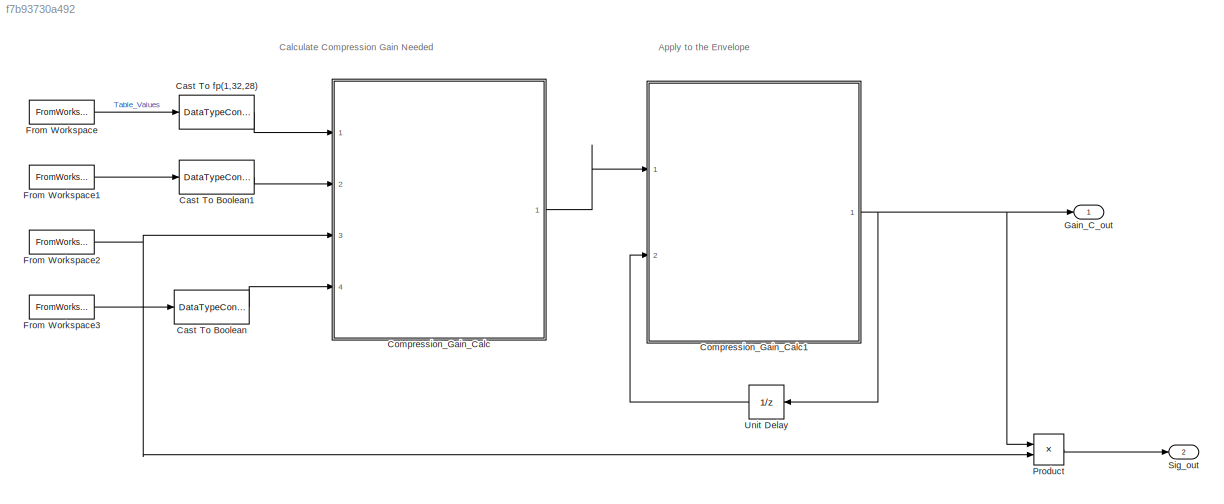
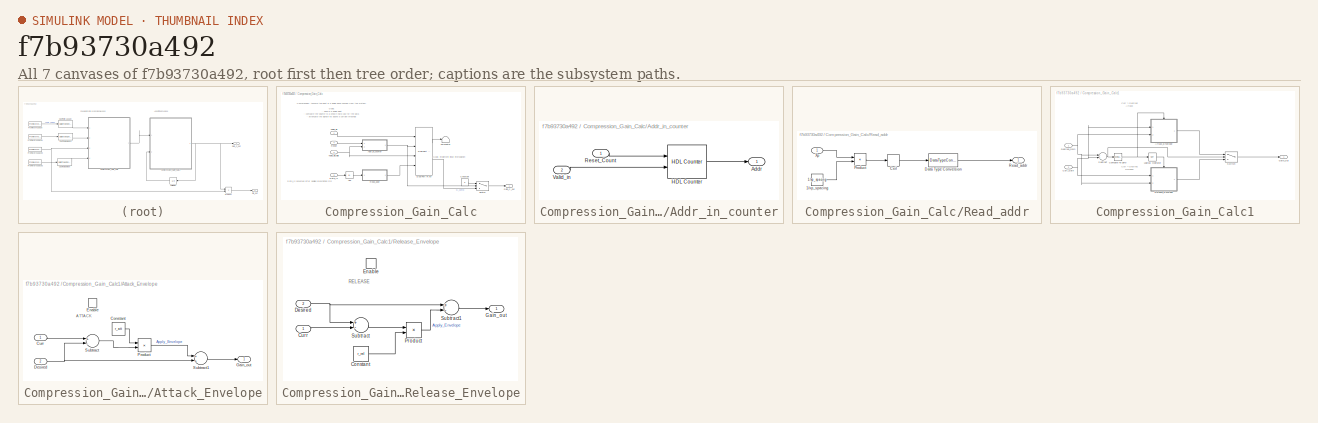
[diagram: thumbnail index - all 7 canvases of the model, root first then tree order]
MODEL slx_f7b93730a492
KIND model
CONFIG AbsTol = auto
CONFIG EnableMultiTasking = off
CONFIG FixedStep = auto
CONFIG InitFcn = clear;\n[sig, fs] = audioread('UnitStepVolumeTest.wav');\n[Gain_Table, xp_spacing, max_gain] = ...\n   Compression_Wrapper(fs, 0, 1, [1], [10], 85, 1);\nTs = 1/fs;\ntt = (0:length(sig)-1)./fs;\nt_end = tt(end);\nsig_in = [tt', sig.*max_gain];\n\nTable_Fill = zeros(1,length(tt))';\nTable_Fill(1:64) = Gain_Table;\nTable_Fill = [tt', Table_Fill];\nFill_Valid = zeros(1,length(tt))';\nFill_Valid(1:64) = ones(1,64)'...<+236ch>
CONFIG MaxStep = auto
CONFIG MinStep = auto
CONFIG RelTol = 1e-3
CONFIG SampleTimeConstraint = Unconstrained
CONFIG Solver = VariableStepAuto
CONFIG SolverName = VariableStepAuto
CONFIG StartTime = 0.0
CONFIG StopTime = t_end
BLOCK [DataTypeConversion] Cast To Boolean
  OutDataTypeStr = boolean
  RndMeth = Floor
  SaturateOnIntegerOverflow = off
BLOCK [DataTypeConversion] Cast To Boolean1
  OutDataTypeStr = boolean
  RndMeth = Floor
  SaturateOnIntegerOverflow = off
BLOCK [DataTypeConversion] Cast To fp(1,32,28)
  OutDataTypeStr = fixdt(1,32,28)
  RndMeth = Floor
  SaturateOnIntegerOverflow = off
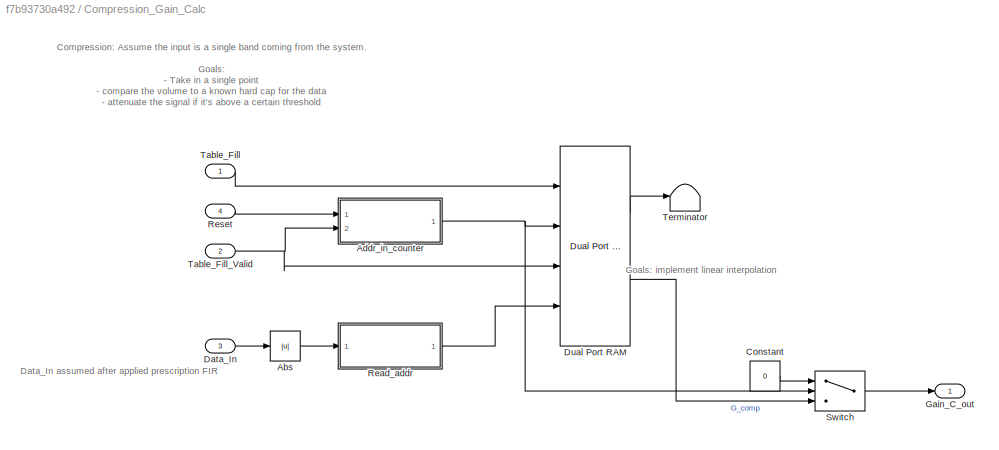
BLOCK [SubSystem] Compression_Gain_Calc
  Ports = [4, 1]
  RequestExecContextInheritance = off
BLOCK [Abs] Compression_Gain_Calc/Abs
  SaturateOnIntegerOverflow = off
BLOCK [SubSystem] Compression_Gain_Calc/Addr_in_counter
  Ports = [2, 1]
  RequestExecContextInheritance = off
BLOCK [Outport] Compression_Gain_Calc/Addr_in_counter/Addr
  IconDisplay = Port number
BLOCK [Reference] Compression_Gain_Calc/Addr_in_counter/HDL Counter  REF=hdlsllib/Sources/HDL Counter
  Ports = [2, 1]
  SourceBlock = hdlsllib/Sources/HDL Counter
  SourceProductBaseCode = SL
  SourceProductName = Simulink
  SourceType = HDL Counter
BLOCK [Inport] Compression_Gain_Calc/Addr_in_counter/Reset_Count
  IconDisplay = Port number
BLOCK [Inport] Compression_Gain_Calc/Addr_in_counter/Valid_in
  IconDisplay = Port number
  Port = 2
BLOCK [Constant] Compression_Gain_Calc/Constant
  SampleTime = -1
  Value = 0
BLOCK [Inport] Compression_Gain_Calc/Data_In
  IconDisplay = Port number
  Port = 3
BLOCK [Reference] Compression_Gain_Calc/Dual Port RAM  REF=hdlsllib/HDL RAMs/Dual Port RAM
  Ports = [4, 2]
  SourceBlock = hdlsllib/HDL RAMs/Dual Port RAM
  SourceProductBaseCode = SL
  SourceProductName = Simulink
  SourceType = Dual-port RAM
BLOCK [Outport] Compression_Gain_Calc/Gain_C_out
  IconDisplay = Port number
BLOCK [SubSystem] Compression_Gain_Calc/Read_addr
  Ports = [1, 1]
  RequestExecContextInheritance = off
BLOCK [Constant] Compression_Gain_Calc/Read_addr/1//xp_spacing
  SampleTime = -1
  Value = 1/xp_spacing
BLOCK [Rounding] Compression_Gain_Calc/Read_addr/Ceil
BLOCK [DataTypeConversion] Compression_Gain_Calc/Read_addr/Data Type Conversion
  OutDataTypeStr = fixdt(0,6,0)
  RndMeth = Nearest
  SaturateOnIntegerOverflow = off
BLOCK [Product] Compression_Gain_Calc/Read_addr/Product
  InputSameDT = off
  OutDataTypeStr = Inherit: Inherit via internal rule
  Ports = [2, 1]
  RndMeth = Floor
  SaturateOnIntegerOverflow = off
BLOCK [Outport] Compression_Gain_Calc/Read_addr/Read_addr
  IconDisplay = Port number
BLOCK [Inport] Compression_Gain_Calc/Read_addr/Xp
  IconDisplay = Port number
BLOCK [Inport] Compression_Gain_Calc/Reset
  IconDisplay = Port number
  Port = 4
BLOCK [Switch] Compression_Gain_Calc/Switch
  Criteria = u2 ~= 0
  InputSameDT = off
  SaturateOnIntegerOverflow = off
  Threshold = 63
  ZeroCross = off
BLOCK [Inport] Compression_Gain_Calc/Table_Fill
  IconDisplay = Port number
BLOCK [Inport] Compression_Gain_Calc/Table_Fill_Valid
  IconDisplay = Port number
  Port = 2
BLOCK [Terminator] Compression_Gain_Calc/Terminator
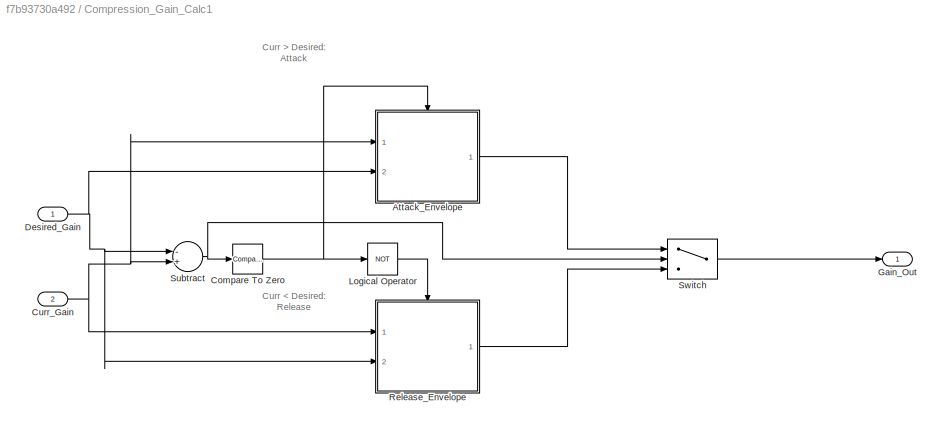
BLOCK [SubSystem] Compression_Gain_Calc1
  Ports = [2, 1]
  RequestExecContextInheritance = off
BLOCK [SubSystem] Compression_Gain_Calc1/Attack_Envelope
  Ports = [2, 1, 1]
  RequestExecContextInheritance = off
  TreatAsAtomicUnit = on
BLOCK [Constant] Compression_Gain_Calc1/Attack_Envelope/Constant
  SampleTime = -1
  Value = r_att
BLOCK [Inport] Compression_Gain_Calc1/Attack_Envelope/Curr
  IconDisplay = Port number
BLOCK [Inport] Compression_Gain_Calc1/Attack_Envelope/Desired
  IconDisplay = Port number
  Port = 2
BLOCK [EnablePort] Compression_Gain_Calc1/Attack_Envelope/Enable
  Ports = []
BLOCK [Outport] Compression_Gain_Calc1/Attack_Envelope/Gain_out
  IconDisplay = Port number
  InitialOutput = 0
BLOCK [Product] Compression_Gain_Calc1/Attack_Envelope/Product
  InputSameDT = off
  OutDataTypeStr = Inherit: Inherit via internal rule
  Ports = [2, 1]
  RndMeth = Floor
  SaturateOnIntegerOverflow = off
BLOCK [Sum] Compression_Gain_Calc1/Attack_Envelope/Subtract
  InputSameDT = off
  Inputs = +-
  OutDataTypeStr = Inherit: Inherit via internal rule
  Ports = [2, 1]
  SaturateOnIntegerOverflow = off
BLOCK [Sum] Compression_Gain_Calc1/Attack_Envelope/Subtract1
  InputSameDT = off
  OutDataTypeStr = Inherit: Inherit via internal rule
  Ports = [2, 1]
  SaturateOnIntegerOverflow = off
BLOCK [Reference] Compression_Gain_Calc1/Compare To Zero  REF=simulink/Logic and Bit
Operations/Compare
To Zero
  Ports = [1, 1]
  SourceBlock = simulink/Logic and Bit\nOperations/Compare\nTo Zero
  SourceProductBaseCode = SL
  SourceProductName = Simulink
  SourceType = Compare To Zero
BLOCK [Inport] Compression_Gain_Calc1/Curr_Gain
  IconDisplay = Port number
  Port = 2
BLOCK [Inport] Compression_Gain_Calc1/Desired_Gain
  IconDisplay = Port number
BLOCK [Outport] Compression_Gain_Calc1/Gain_Out
  IconDisplay = Port number
BLOCK [Logic] Compression_Gain_Calc1/Logical Operator
  AllPortsSameDT = off
  Operator = NOT
  OutDataTypeStr = boolean
  Ports = [1, 1]
BLOCK [SubSystem] Compression_Gain_Calc1/Release_Envelope
  Ports = [2, 1, 1]
  RequestExecContextInheritance = off
  TreatAsAtomicUnit = on
BLOCK [Constant] Compression_Gain_Calc1/Release_Envelope/Constant
  SampleTime = -1
  Value = r_rel
BLOCK [Inport] Compression_Gain_Calc1/Release_Envelope/Curr
  IconDisplay = Port number
BLOCK [Inport] Compression_Gain_Calc1/Release_Envelope/Desired
  IconDisplay = Port number
  Port = 2
BLOCK [EnablePort] Compression_Gain_Calc1/Release_Envelope/Enable
  Ports = []
BLOCK [Outport] Compression_Gain_Calc1/Release_Envelope/Gain_out
  IconDisplay = Port number
  InitialOutput = 0
BLOCK [Product] Compression_Gain_Calc1/Release_Envelope/Product
  InputSameDT = off
  OutDataTypeStr = Inherit: Inherit via internal rule
  Ports = [2, 1]
  RndMeth = Floor
  SaturateOnIntegerOverflow = off
BLOCK [Sum] Compression_Gain_Calc1/Release_Envelope/Subtract
  InputSameDT = off
  Inputs = +-
  OutDataTypeStr = Inherit: Inherit via internal rule
  Ports = [2, 1]
  SaturateOnIntegerOverflow = off
BLOCK [Sum] Compression_Gain_Calc1/Release_Envelope/Subtract1
  InputSameDT = off
  Inputs = +-
  OutDataTypeStr = Inherit: Inherit via internal rule
  Ports = [2, 1]
  SaturateOnIntegerOverflow = off
BLOCK [Sum] Compression_Gain_Calc1/Subtract
  InputSameDT = off
  Inputs = -+
  OutDataTypeStr = Inherit: Inherit via internal rule
  Ports = [2, 1]
  SaturateOnIntegerOverflow = off
BLOCK [Switch] Compression_Gain_Calc1/Switch
  InputSameDT = off
  SaturateOnIntegerOverflow = off
BLOCK [FromWorkspace] From Workspace
  Interpolate = off
  OutputAfterFinalValue = Setting to zero
  SampleTime = Ts
  VariableName = Table_Fill
  ZeroCross = on
BLOCK [FromWorkspace] From Workspace1
  OutputAfterFinalValue = Setting to zero
  SampleTime = Ts
  VariableName = Fill_Valid
  ZeroCross = on
BLOCK [FromWorkspace] From Workspace2
  Interpolate = off
  OutputAfterFinalValue = Setting to zero
  SampleTime = Ts
  VariableName = sig_in
  ZeroCross = on
BLOCK [FromWorkspace] From Workspace3
  Interpolate = off
  OutputAfterFinalValue = Setting to zero
  SampleTime = Ts
  VariableName = Reset
  ZeroCross = on
BLOCK [Outport] Gain_C_out
  IconDisplay = Port number
BLOCK [Product] Product
  InputSameDT = off
  OutDataTypeStr = Inherit: Inherit via internal rule
  Ports = [2, 1]
  RndMeth = Floor
  SaturateOnIntegerOverflow = off
BLOCK [Outport] Sig_out
  IconDisplay = Port number
  Port = 2
BLOCK [UnitDelay] Unit Delay
  HasFrameUpgradeWarning = on
  InitialCondition = 1
  SampleTime = -1
ANNOTATION (root): Apply to the Envelope
ANNOTATION (root): Calculate Compression Gain Needed
ANNOTATION Compression_Gain_Calc: Compression: Assume the input is a single band coming from the system. Goals: - Take in a single point - compare the volume to a known hard cap for the data - attenuate the signal if it's above a certain threshold - the distance above the threshold should be cut in dB by a ratio R - return the output point at the same sample rate received
ANNOTATION Compression_Gain_Calc: Data_In assumed after applied prescription FIR
ANNOTATION Compression_Gain_Calc: Goals: implement linear interpolation
ANNOTATION Compression_Gain_Calc1: Curr < Desired: Release
ANNOTATION Compression_Gain_Calc1: Curr > Desired: Attack
ANNOTATION Compression_Gain_Calc1/Attack_Envelope: ATTACK
ANNOTATION Compression_Gain_Calc1/Release_Envelope: RELEASE
LINE Cast To Boolean1:1 -> Compression_Gain_Calc:2
LINE Cast To Boolean:1 -> Compression_Gain_Calc:4
LINE Cast To fp(1,32,28):1 -> Compression_Gain_Calc:1
LINE Compression_Gain_Calc/Abs:1 -> Compression_Gain_Calc/Read_addr:1
LINE Compression_Gain_Calc/Addr_in_counter/HDL Counter:1 -> Compression_Gain_Calc/Addr_in_counter/Addr:1
LINE Compression_Gain_Calc/Addr_in_counter/Reset_Count:1 -> Compression_Gain_Calc/Addr_in_counter/HDL Counter:1
LINE Compression_Gain_Calc/Addr_in_counter/Valid_in:1 -> Compression_Gain_Calc/Addr_in_counter/HDL Counter:2
NET Compression_Gain_Calc/Addr_in_counter:1 -> Compression_Gain_Calc/Dual Port RAM:2, Compression_Gain_Calc/Switch:2
LINE Compression_Gain_Calc/Constant:1 -> Compression_Gain_Calc/Switch:1
LINE Compression_Gain_Calc/Data_In:1 -> Compression_Gain_Calc/Abs:1
LINE Compression_Gain_Calc/Dual Port RAM:1 -> Compression_Gain_Calc/Terminator:1
LINE Compression_Gain_Calc/Dual Port RAM:2 -> Compression_Gain_Calc/Switch:3
LINE Compression_Gain_Calc/Read_addr/1//xp_spacing:1 -> Compression_Gain_Calc/Read_addr/Product:2
LINE Compression_Gain_Calc/Read_addr/Ceil:1 -> Compression_Gain_Calc/Read_addr/Data Type Conversion:1
LINE Compression_Gain_Calc/Read_addr/Data Type Conversion:1 -> Compression_Gain_Calc/Read_addr/Read_addr:1
LINE Compression_Gain_Calc/Read_addr/Product:1 -> Compression_Gain_Calc/Read_addr/Ceil:1
LINE Compression_Gain_Calc/Read_addr/Xp:1 -> Compression_Gain_Calc/Read_addr/Product:1
LINE Compression_Gain_Calc/Read_addr:1 -> Compression_Gain_Calc/Dual Port RAM:4
LINE Compression_Gain_Calc/Reset:1 -> Compression_Gain_Calc/Addr_in_counter:1
LINE Compression_Gain_Calc/Switch:1 -> Compression_Gain_Calc/Gain_C_out:1
LINE Compression_Gain_Calc/Table_Fill:1 -> Compression_Gain_Calc/Dual Port RAM:1
NET Compression_Gain_Calc/Table_Fill_Valid:1 -> Compression_Gain_Calc/Addr_in_counter:2, Compression_Gain_Calc/Dual Port RAM:3
LINE Compression_Gain_Calc1/Attack_Envelope/Constant:1 -> Compression_Gain_Calc1/Attack_Envelope/Product:1
LINE Compression_Gain_Calc1/Attack_Envelope/Curr:1 -> Compression_Gain_Calc1/Attack_Envelope/Subtract:1
NET Compression_Gain_Calc1/Attack_Envelope/Desired:1 -> Compression_Gain_Calc1/Attack_Envelope/Subtract1:2, Compression_Gain_Calc1/Attack_Envelope/Subtract:2
LINE Compression_Gain_Calc1/Attack_Envelope/Product:1 -> Compression_Gain_Calc1/Attack_Envelope/Subtract1:1
LINE Compression_Gain_Calc1/Attack_Envelope/Subtract1:1 -> Compression_Gain_Calc1/Attack_Envelope/Gain_out:1
LINE Compression_Gain_Calc1/Attack_Envelope/Subtract:1 -> Compression_Gain_Calc1/Attack_Envelope/Product:2
LINE Compression_Gain_Calc1/Attack_Envelope:1 -> Compression_Gain_Calc1/Switch:1
NET Compression_Gain_Calc1/Compare To Zero:1 -> Compression_Gain_Calc1/Attack_Envelope:enable, Compression_Gain_Calc1/Logical Operator:1
NET Compression_Gain_Calc1/Curr_Gain:1 -> Compression_Gain_Calc1/Attack_Envelope:1, Compression_Gain_Calc1/Release_Envelope:1, Compression_Gain_Calc1/Subtract:2
NET Compression_Gain_Calc1/Desired_Gain:1 -> Compression_Gain_Calc1/Attack_Envelope:2, Compression_Gain_Calc1/Release_Envelope:2, Compression_Gain_Calc1/Subtract:1
LINE Compression_Gain_Calc1/Logical Operator:1 -> Compression_Gain_Calc1/Release_Envelope:enable
LINE Compression_Gain_Calc1/Release_Envelope/Constant:1 -> Compression_Gain_Calc1/Release_Envelope/Product:2
LINE Compression_Gain_Calc1/Release_Envelope/Curr:1 -> Compression_Gain_Calc1/Release_Envelope/Subtract:2
NET Compression_Gain_Calc1/Release_Envelope/Desired:1 -> Compression_Gain_Calc1/Release_Envelope/Subtract1:1, Compression_Gain_Calc1/Release_Envelope/Subtract:1
LINE Compression_Gain_Calc1/Release_Envelope/Product:1 -> Compression_Gain_Calc1/Release_Envelope/Subtract1:2
LINE Compression_Gain_Calc1/Release_Envelope/Subtract1:1 -> Compression_Gain_Calc1/Release_Envelope/Gain_out:1
LINE Compression_Gain_Calc1/Release_Envelope/Subtract:1 -> Compression_Gain_Calc1/Release_Envelope/Product:1
LINE Compression_Gain_Calc1/Release_Envelope:1 -> Compression_Gain_Calc1/Switch:3
NET Compression_Gain_Calc1/Subtract:1 -> Compression_Gain_Calc1/Compare To Zero:1, Compression_Gain_Calc1/Switch:2
LINE Compression_Gain_Calc1/Switch:1 -> Compression_Gain_Calc1/Gain_Out:1
NET Compression_Gain_Calc1:1 -> Gain_C_out:1, Product:1, Unit Delay:1
LINE Compression_Gain_Calc:1 -> Compression_Gain_Calc1:1
LINE From Workspace1:1 -> Cast To Boolean1:1
NET From Workspace2:1 -> Compression_Gain_Calc:3, Product:2
LINE From Workspace3:1 -> Cast To Boolean:1
LINE From Workspace:1 -> Cast To fp(1,32,28):1
LINE Product:1 -> Sig_out:1
LINE Unit Delay:1 -> Compression_Gain_Calc1:2
note: NET lines group one-source signal fan-out (src -> all destinations, sorted); 1:1 wires keep LINE
